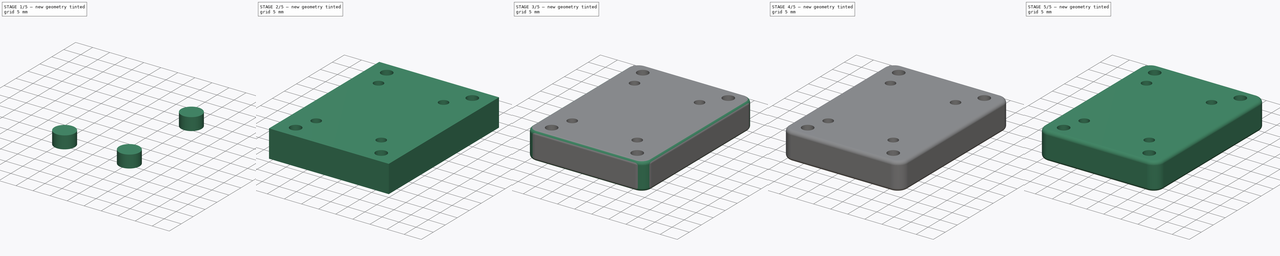
[diagram: build sequence overview — one tinted view per stage of 5, left to right]
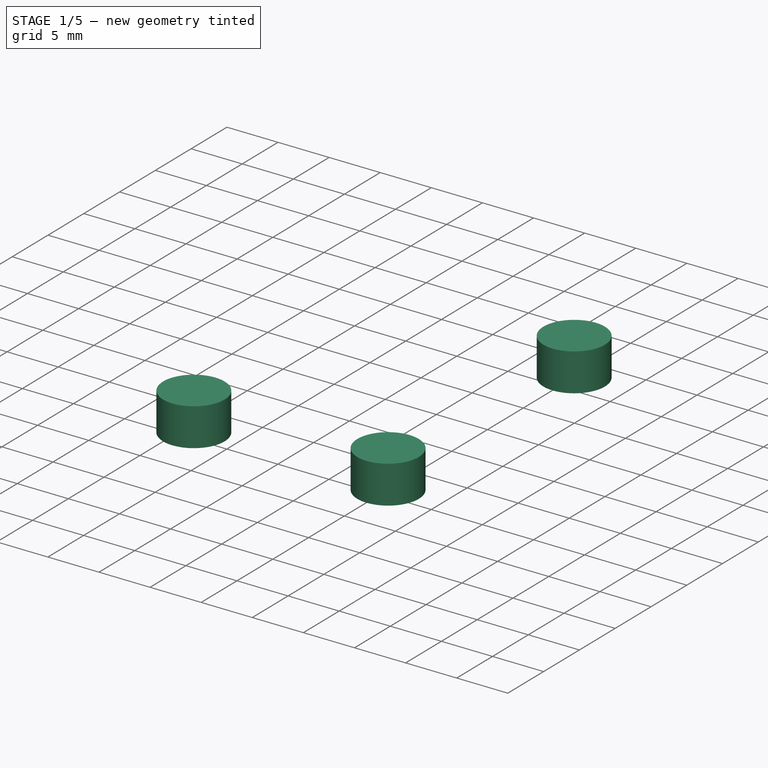
[diagram: stage 1 of 5 — iso view after this stage's code; geometry added in this stage tinted green]
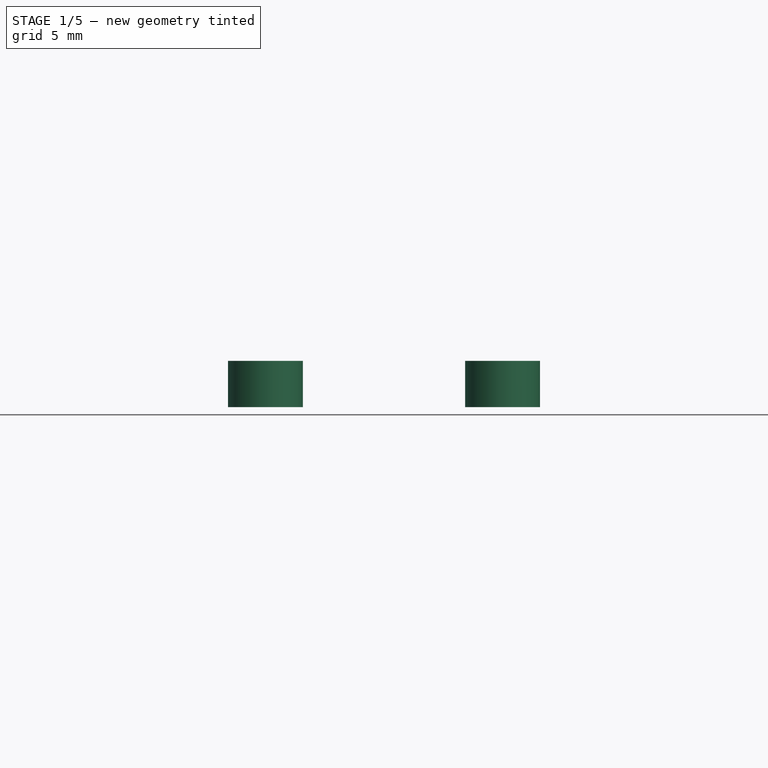
[diagram: stage 1 of 5 — front view after this stage's code; geometry added in this stage tinted green]
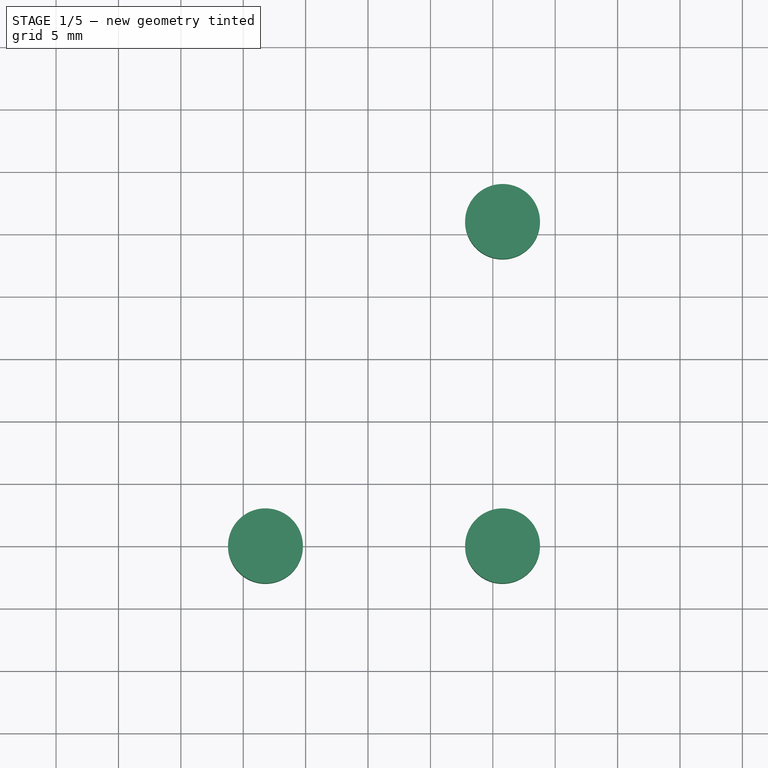
[diagram: stage 1 of 5 — top view after this stage's code; geometry added in this stage tinted green]
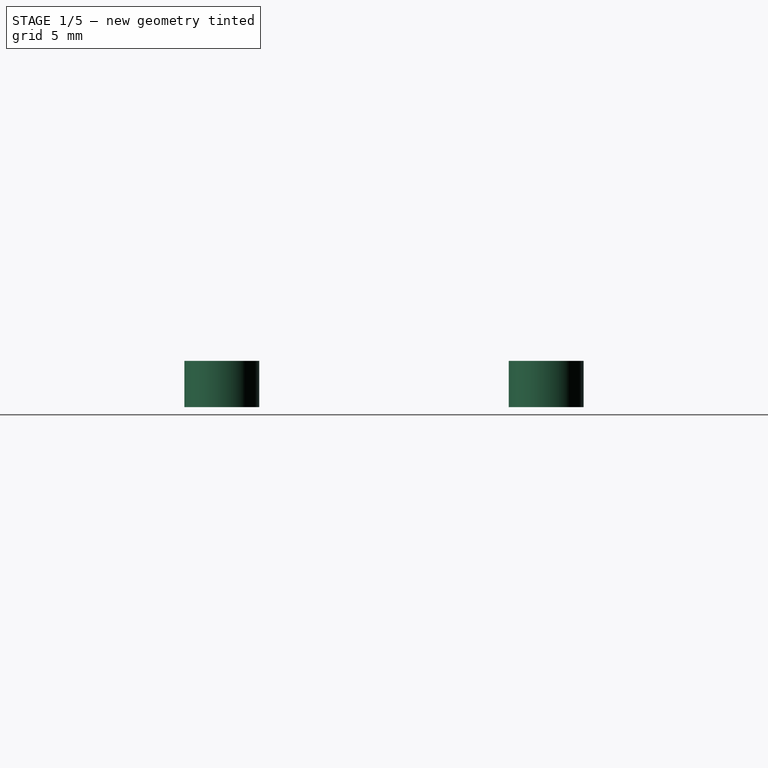
[diagram: stage 1 of 5 — right view after this stage's code; geometry added in this stage tinted green]
FCSTD DOCUMENT  (FreeCAD 1.0R39109 (Git))
Label: ozonePumpHolder
License: All rights reserved
LicenseURL: https://en.wikipedia.org/wiki/All_rights_reserved
objects: Part::Feature×10, Part::Cylinder×8, App::Part×4, Sketcher::SketchObject×2, Part::Extrusion×2, Part::Fillet×2, Part::MultiFuse×2, Part::Cut×2
note: 30 computed .brp shape members not serialized (recipe doc carries the construction recipe); baked Part::Feature solids carry a one-line shape summary decoded from their .brp

FEATURE [Part::Cylinder] Cylinder005
  Angle = 360
  AttacherType = Attacher::AttachEngine3D
  FirstAngle = 0
  Height = 3.7
  Placement = pos=(195.78,-4,-14) rot=(0,0,1;0rad)
  Radius = 3
  SecondAngle = 0
FEATURE [Part::Cylinder] Cylinder006
  Angle = 360
  AttacherType = Attacher::AttachEngine3D
  FirstAngle = 0
  Height = 3.7
  Placement = pos=(195.78,-30,-14) rot=(0,0,1;0rad)
  Radius = 3
  SecondAngle = 0
FEATURE [Part::Cylinder] Cylinder007
  Angle = 360
  AttacherType = Attacher::AttachEngine3D
  FirstAngle = 0
  Height = 3.7
  Placement = pos=(176.78,-30,-14) rot=(0,0,1;0rad)
  Radius = 3
  SecondAngle = 0
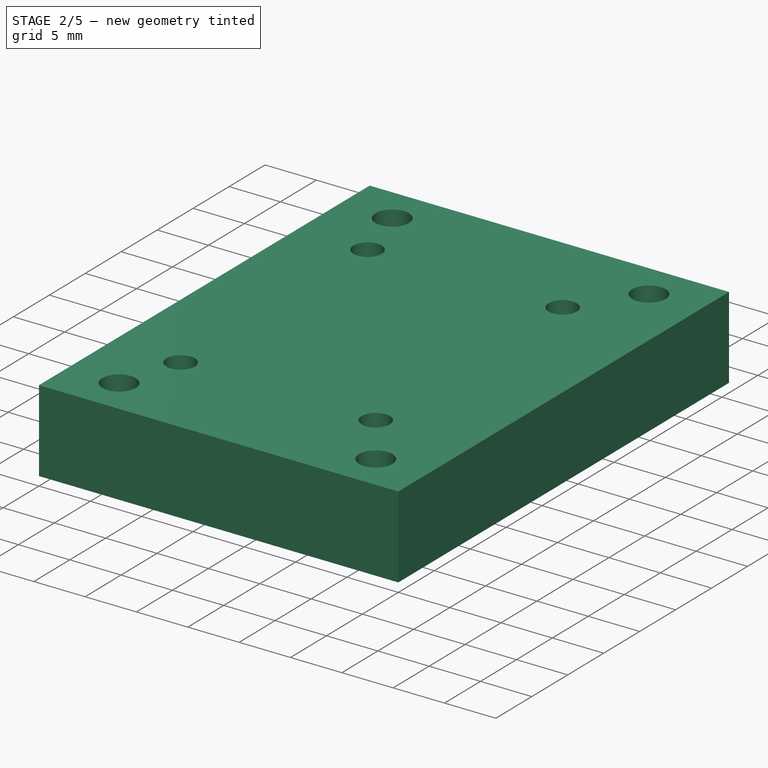
[diagram: stage 2 of 5 — iso view after this stage's code; geometry added in this stage tinted green]
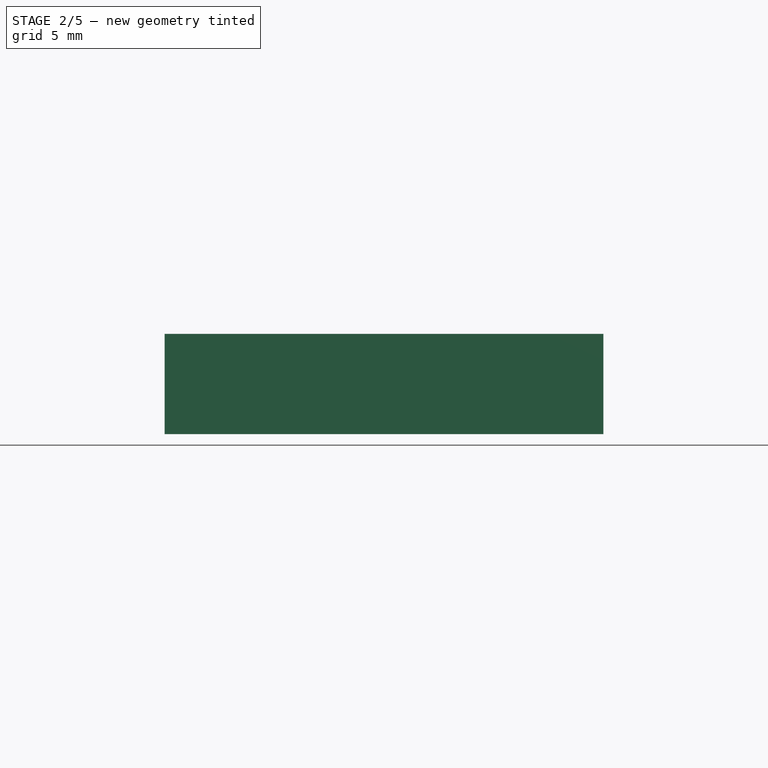
[diagram: stage 2 of 5 — front view after this stage's code; geometry added in this stage tinted green]
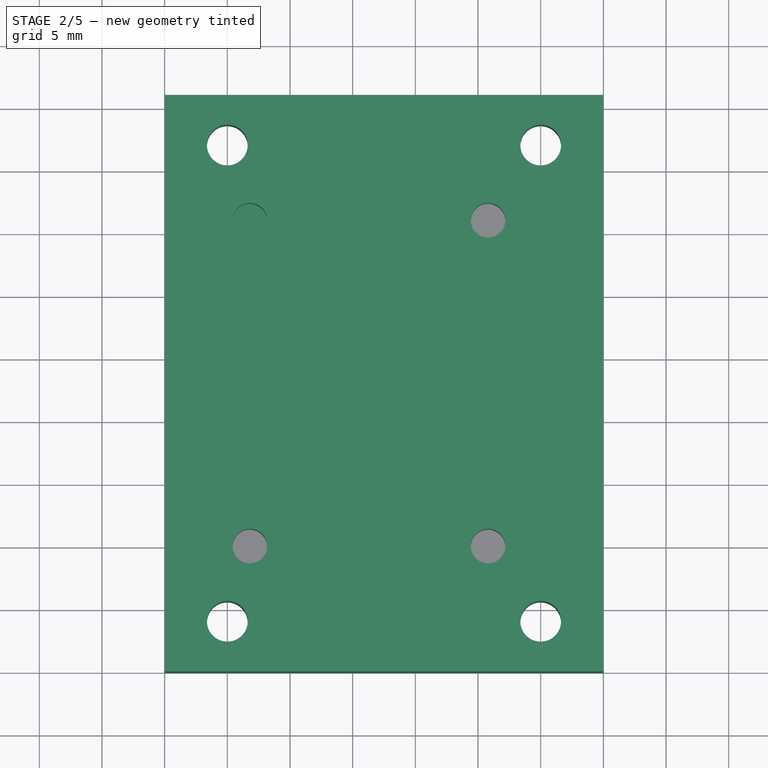
[diagram: stage 2 of 5 — top view after this stage's code; geometry added in this stage tinted green]
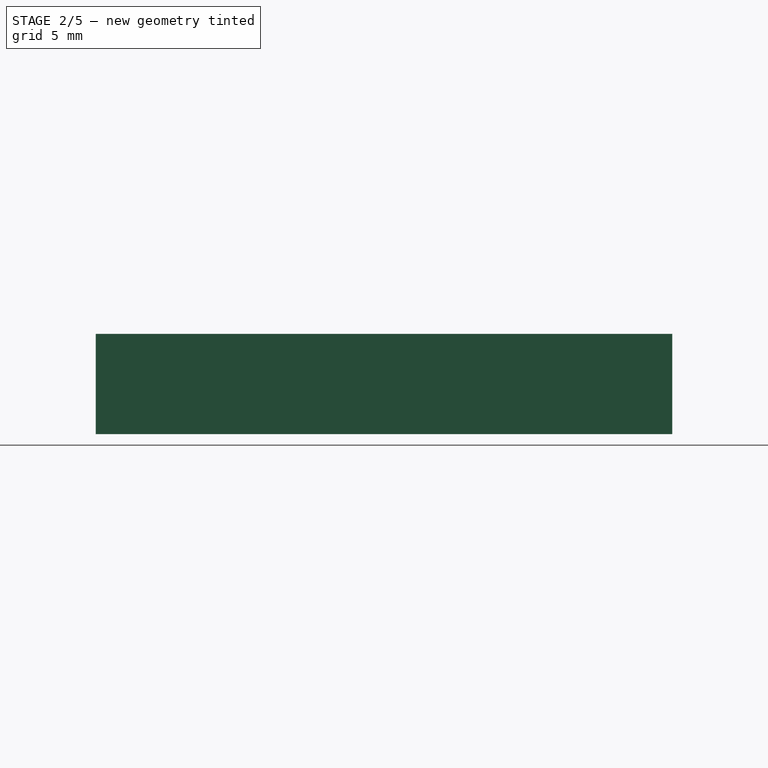
[diagram: stage 2 of 5 — right view after this stage's code; geometry added in this stage tinted green]
FEATURE [App::Part] Part
  Group = -> [_51659_8_05358_PUMPE__SW0001,Sketch,Extrude,Fillet,Cylinder,Cylinder001,Cylinder002,Cylinder003,Fusion,Cut]
  Origin = -> Origin001
FEATURE [Part::Cylinder] Cylinder004
  Angle = 360
  AttacherType = Attacher::AttachEngine3D
  FirstAngle = 0
  Height = 3.7
  Placement = pos=(176.78,-4,-14) rot=(0,0,1;0rad)
  Radius = 3
  SecondAngle = 0
FEATURE [Part::MultiFuse] Fusion001  label="m3_head001"
  Refine = true
  Shapes = -> [Cylinder004,Cylinder005,Cylinder006,Cylinder007]
FEATURE [Part::Feature] Part__Feature009  label="051659-8_05358-PUMPE-_SW0006"
  shape: bbox 32.37 x 50.78 x 84.45 mm, 991 faces (baked)
FEATURE [Part::Feature] Part__Feature010  label="051659-8_05358-PUMPE-_SW0007"
  shape: bbox 4 x 4 x 0.751 mm, 31 faces (baked)
FEATURE [Part::Feature] Part__Feature011  label="051659-8_05358-PUMPE-_SW0008"
  shape: bbox 4 x 4 x 0.751 mm, 31 faces (baked)
FEATURE [Part::Feature] Part__Feature012  label="051659-8_05358-PUMPE-_SW0009"
  shape: bbox 4 x 4 x 0.751 mm, 31 faces (baked)
FEATURE [Part::Feature] Part__Feature013  label="051659-8_05358-PUMPE-_SW0010"
  shape: bbox 4 x 4 x 0.751 mm, 31 faces (baked)
FEATURE [Sketcher::SketchObject] Sketch001
  ArcFitTolerance = 1e-06
  FullyConstrained = true
  MakeInternals = false
  sketch-geometry (12):
    g0: LineSegment StartX=170 StartY=6 StartZ=0 EndX=170 EndY=-40 EndZ=0
    g1: LineSegment StartX=170 StartY=-40 StartZ=0 EndX=205 EndY=-40 EndZ=0
    g2: LineSegment StartX=205 StartY=-40 StartZ=0 EndX=205 EndY=6 EndZ=0
    g3: LineSegment StartX=205 StartY=6 StartZ=0 EndX=170 EndY=6 EndZ=0
    g4: Circle CenterX=195.8 CenterY=-30 CenterZ=0 NormalX=0 NormalY=0 NormalZ=1 AngleXU=0 Radius=1.375
    g5: Circle CenterX=195.8 CenterY=-4 CenterZ=0 NormalX=0 NormalY=0 NormalZ=1 AngleXU=0 Radius=1.375
    g6: Circle CenterX=176.8 CenterY=-30 CenterZ=0 NormalX=0 NormalY=0 NormalZ=1 AngleXU=0 Radius=1.375
    g7: Circle CenterX=176.8 CenterY=-4 CenterZ=0 NormalX=0 NormalY=0 NormalZ=1 AngleXU=0 Radius=1.375
    g8: Circle CenterX=200 CenterY=-36 CenterZ=0 NormalX=0 NormalY=0 NormalZ=1 AngleXU=0 Radius=1.625
    g9: Circle CenterX=200 CenterY=2 CenterZ=0 NormalX=0 NormalY=0 NormalZ=1 AngleXU=0 Radius=1.625
    g10: Circle CenterX=175 CenterY=2 CenterZ=0 NormalX=0 NormalY=0 NormalZ=1 AngleXU=0 Radius=1.625
    g11: Circle CenterX=175 CenterY=-36 CenterZ=0 NormalX=0 NormalY=0 NormalZ=1 AngleXU=0 Radius=1.625
  constraints (36):
    c: Coincident(g0,g1)
    c: Coincident(g1,g2)
    c: Coincident(g2,g3)
    c: Coincident(g3,g0)
    c: Vertical(g0)
    c: Vertical(g2)
    c: Horizontal(g1)
    c: Horizontal(g3)
    c: DistanceX(g3,g3) = 35
    c: Distance(g0) = 46
    c: Distance(g0,g-2) = 170
    c: Distance(g0,g-1) = 40
    c: Equal(g4,g6)
    c: Equal(g4,g7)
    c: Equal(g4,g5)
    c: Diameter(g4) = 2.75
    c: Distance(g4,g2) = 9.2
    c: Distance(g7,g3) = 10
    c: Distance(g6,g1) = 10
    c: Distance(g8,g2) = 5
    c: Equal(g8,g9)
    c: Diameter(g8) = 3.25
    c: Distance(g11,g1) = 4
    c: Distance(g10,g3) = 4
    c: Distance(g10,g0) = 5
    c: Equal(g10,g11)
    c: Diameter(g10) = 3.25
    c: Horizontal(g9,g10)
    c: Horizontal(g8,g11)
    c: Horizontal(g4,g6)
    c: Horizontal(g7,g5)
    c: DistanceX(g0,g7) = 6.8
    c: Vertical(g6,g7)
    c: Vertical(g11,g10)
    c: Vertical(g8,g9)
    c: Vertical(g5,g4)
FEATURE [Part::Extrusion] Extrude001
  Base = -> Sketch001
  Dir = (0,0,1)
  DirMode = 2
  FaceMakerClass = Part::FaceMakerBullseye
  FaceMakerMode = 3
  LengthFwd = 8
  LengthRev = 0
  Placement = pos=(0,0,-14) rot=(0,0,1;0rad)
  Solid = true
  Symmetric = false
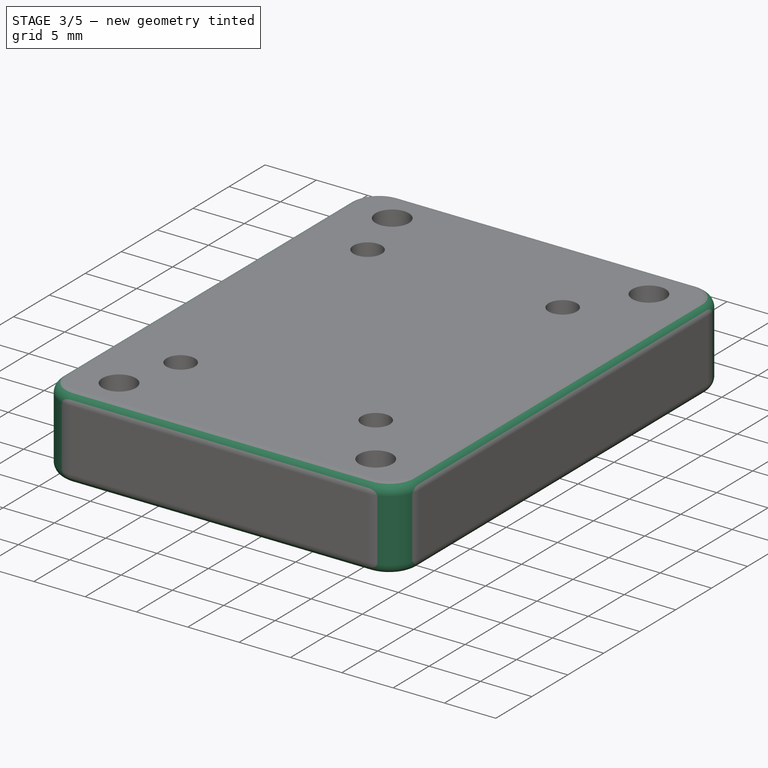
[diagram: stage 3 of 5 — iso view after this stage's code; geometry added in this stage tinted green]
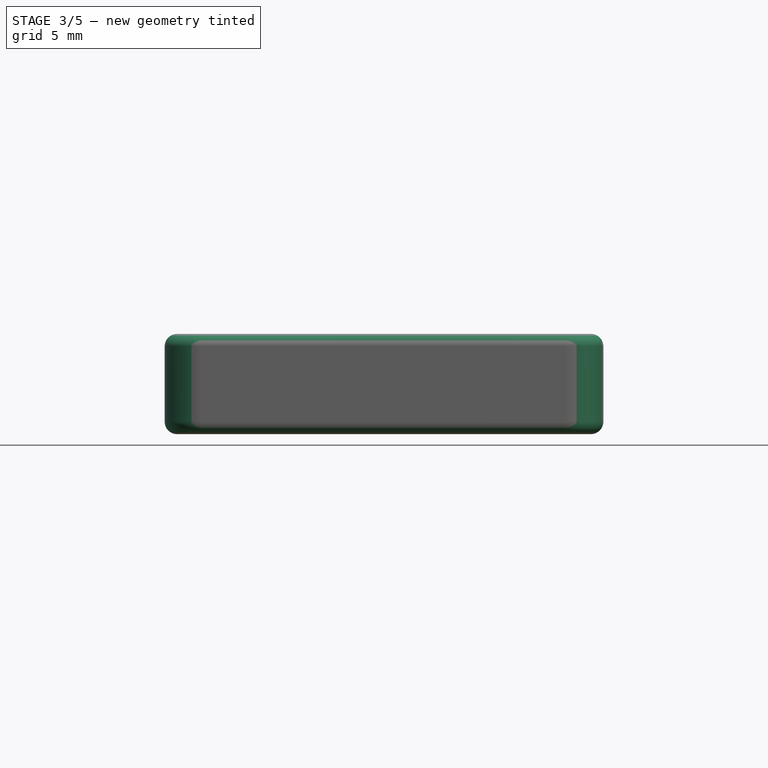
[diagram: stage 3 of 5 — front view after this stage's code; geometry added in this stage tinted green]
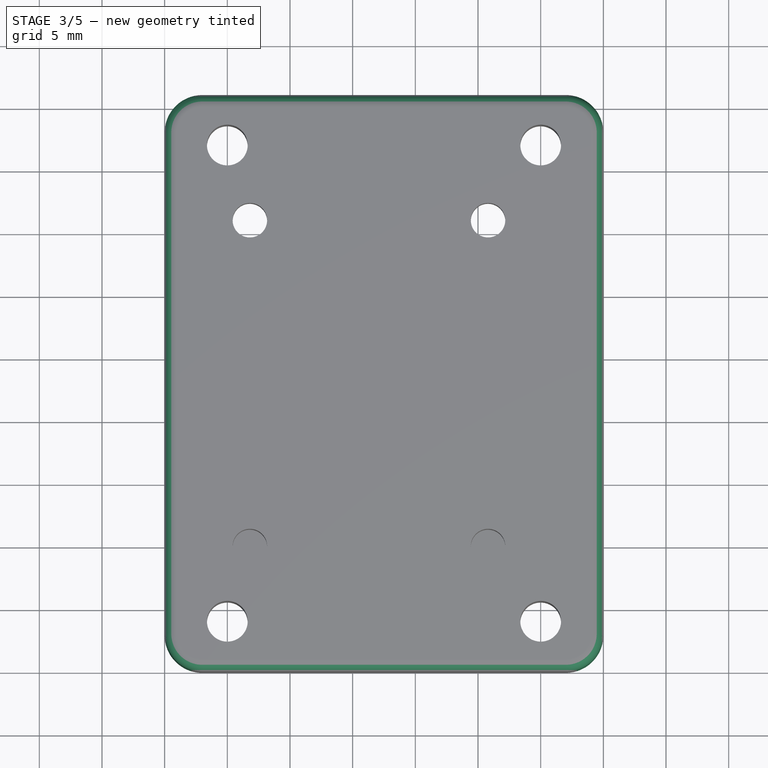
[diagram: stage 3 of 5 — top view after this stage's code; geometry added in this stage tinted green]
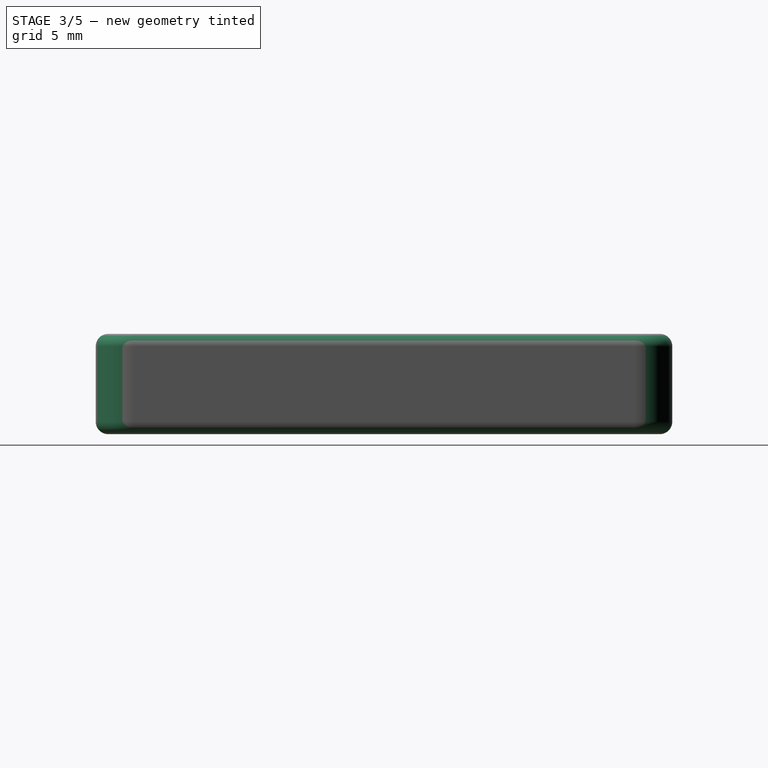
[diagram: stage 3 of 5 — right view after this stage's code; geometry added in this stage tinted green]
FEATURE [Part::Cylinder] Cylinder002
  Angle = 360
  AttacherType = Attacher::AttachEngine3D
  FirstAngle = 0
  Height = 3.7
  Placement = pos=(195.78,-30,-14) rot=(0,0,1;0rad)
  Radius = 3
  SecondAngle = 0
FEATURE [Part::Cylinder] Cylinder003
  Angle = 360
  AttacherType = Attacher::AttachEngine3D
  FirstAngle = 0
  Height = 3.7
  Placement = pos=(176.78,-30,-14) rot=(0,0,1;0rad)
  Radius = 3
  SecondAngle = 0
FEATURE [Part::Fillet] Fillet001  label="Holder001"
  Base = -> Extrude001
  EdgeLinks = -> Extrude001 [?Edge1,?Edge2,Edge3,Edge4,?Edge5,Edge6,Edge7,?Edge8,Edge9,Edge10,Edge11,Edge12]
  Edges = 12 edges: [Edge1 r=3,Edge2 r=3,Edge3 r=1,Edge4 r=1,Edge5 r=3,Edge6 r=1,Edge7 r=1,Edge8 r=3,Edge9 r=1,Edge10 r=1,Edge11 r=1,Edge12 r=1]
FEATURE [Part::Cut] Cut001  label="Holder_M3_cut001"
  Base = -> Fillet001
  Refine = true
  Tool = -> Fusion001
FEATURE [App::Part] _51659_8_05358_PUMPE__SW0002  label="Pump001"
  Group = -> [Part__Feature009,Part__Feature010,Part__Feature011,Part__Feature012,Part__Feature013]
  Origin = -> Origin002
  Placement = pos=(183,-17,11) rot=(0.57735,0.57735,0.57735;2.0944rad)
FEATURE [App::Part] Part001
  Group = -> [_51659_8_05358_PUMPE__SW0002,Sketch001,Extrude001,Fillet001,Cylinder004,Cylinder005,Cylinder006,Cylinder007,Fusion001,Cut001]
  Origin = -> Origin003
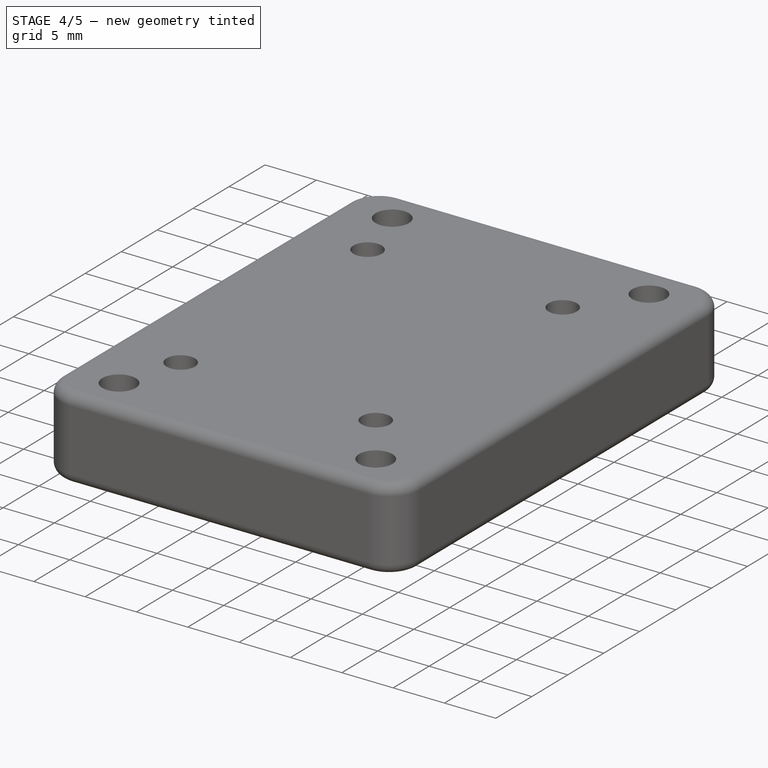
[diagram: stage 4 of 5 — iso view after this stage's code; geometry added in this stage tinted green]
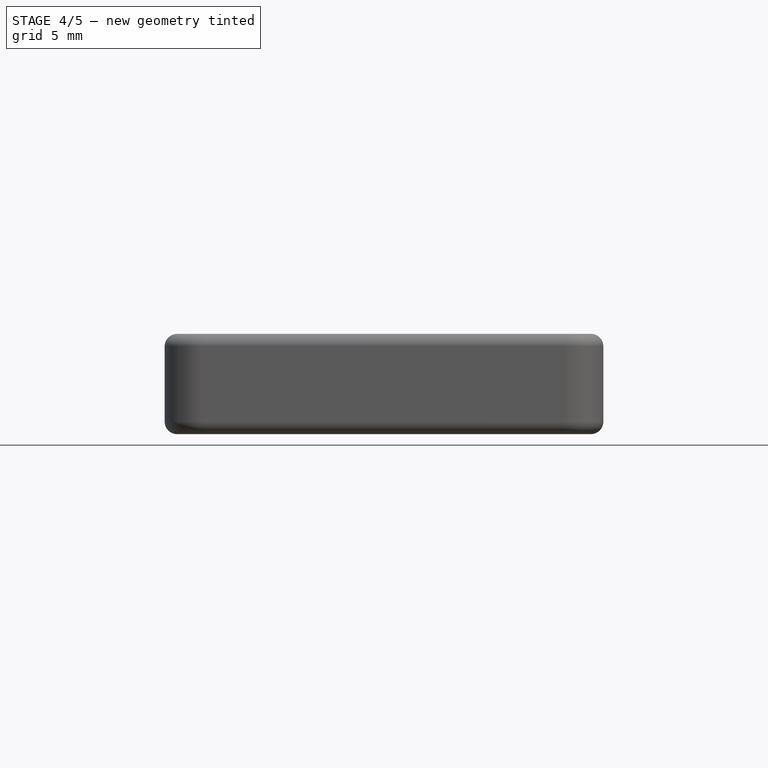
[diagram: stage 4 of 5 — front view after this stage's code; geometry added in this stage tinted green]
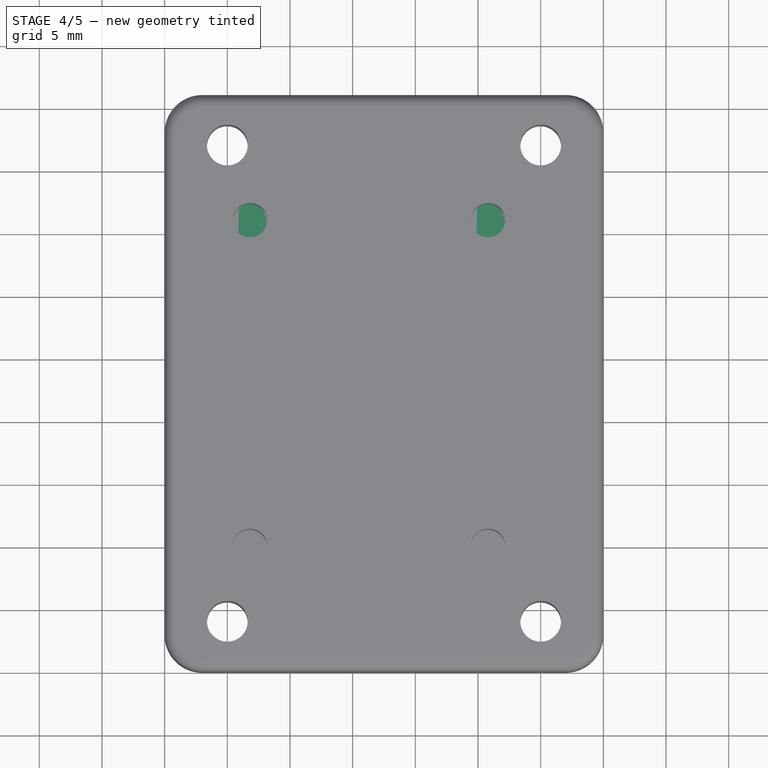
[diagram: stage 4 of 5 — top view after this stage's code; geometry added in this stage tinted green]
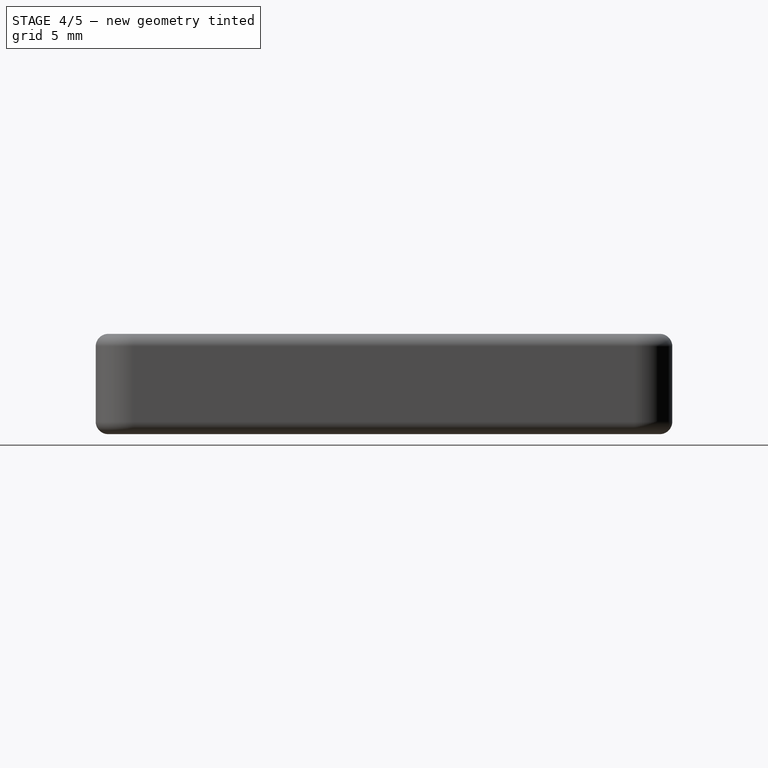
[diagram: stage 4 of 5 — right view after this stage's code; geometry added in this stage tinted green]
FEATURE [Part::Cylinder] Cylinder
  Angle = 360
  AttacherType = Attacher::AttachEngine3D
  FirstAngle = 0
  Height = 3.7
  Placement = pos=(176.78,-4,-14) rot=(0,0,1;0rad)
  Radius = 3
  SecondAngle = 0
FEATURE [Part::Cylinder] Cylinder001
  Angle = 360
  AttacherType = Attacher::AttachEngine3D
  FirstAngle = 0
  Height = 3.7
  Placement = pos=(195.78,-4,-14) rot=(0,0,1;0rad)
  Radius = 3
  SecondAngle = 0
FEATURE [Part::MultiFuse] Fusion  label="m3_head"
  Refine = true
  Shapes = -> [Cylinder,Cylinder001,Cylinder002,Cylinder003]
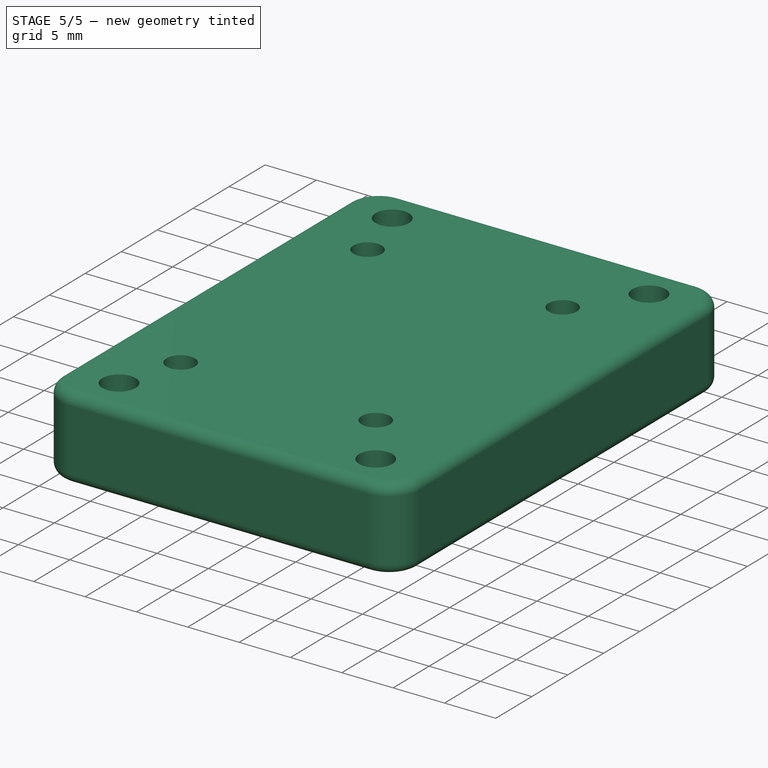
[diagram: stage 5 of 5 — iso view after this stage's code; geometry added in this stage tinted green]
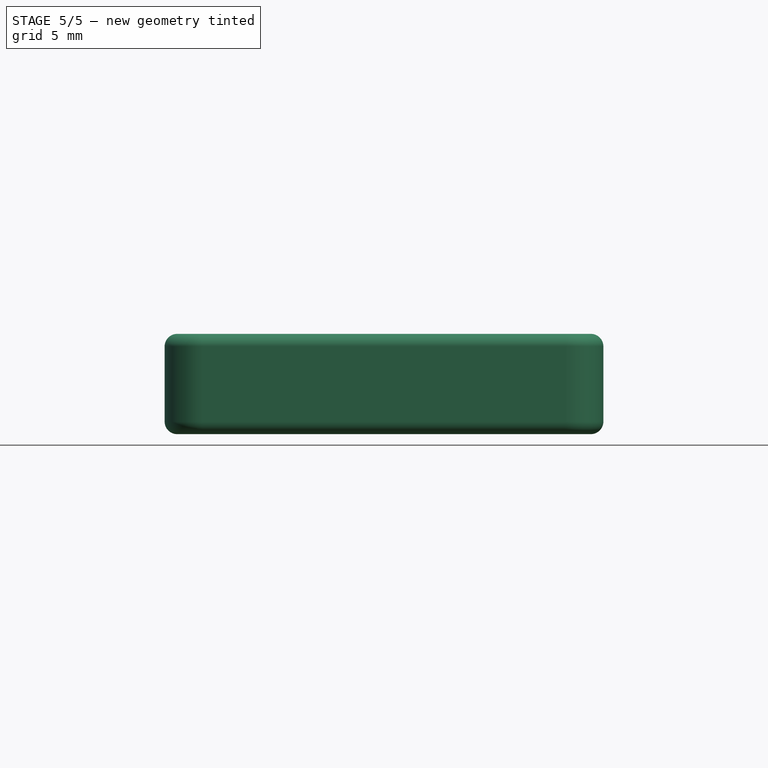
[diagram: stage 5 of 5 — front view after this stage's code; geometry added in this stage tinted green]
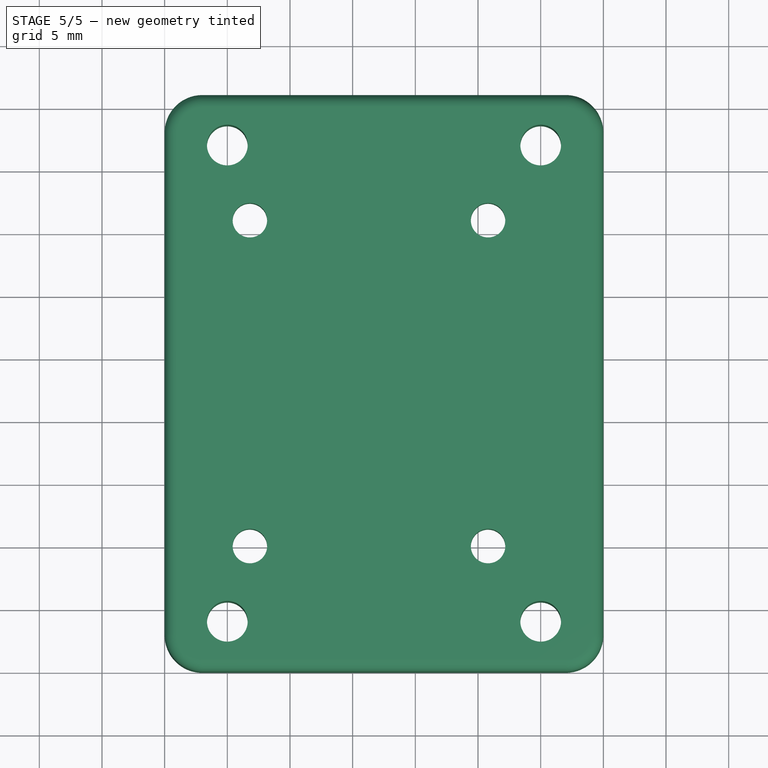
[diagram: stage 5 of 5 — top view after this stage's code; geometry added in this stage tinted green]
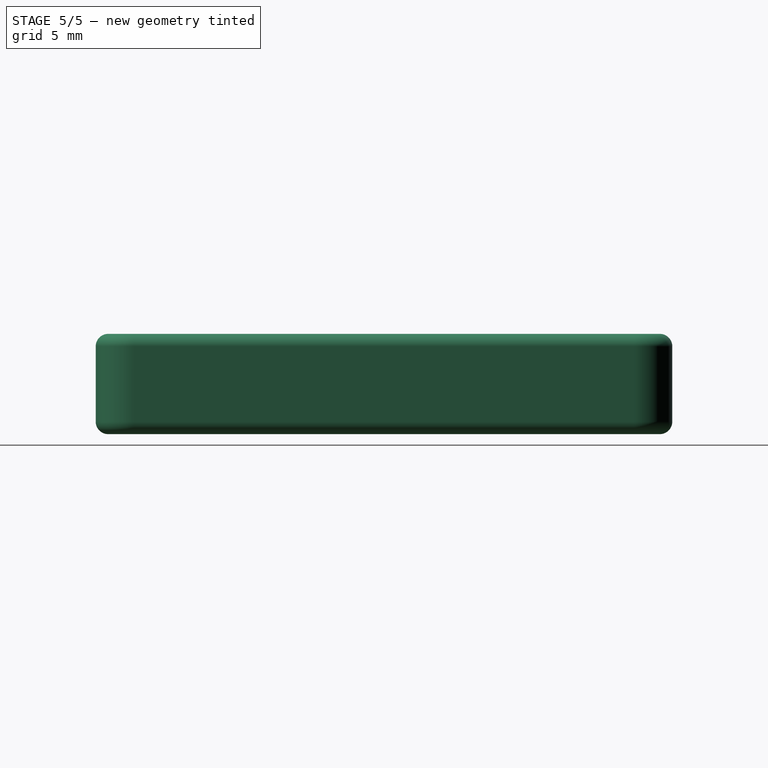
[diagram: stage 5 of 5 — right view after this stage's code; geometry added in this stage tinted green]
FEATURE [Part::Feature] Part__Feature004  label="051659-8_05358-PUMPE-_SW0001"
  shape: bbox 32.37 x 50.78 x 84.45 mm, 991 faces (baked)
FEATURE [Part::Feature] Part__Feature005  label="051659-8_05358-PUMPE-_SW0002"
  shape: bbox 4 x 4 x 0.751 mm, 31 faces (baked)
FEATURE [Part::Feature] Part__Feature006  label="051659-8_05358-PUMPE-_SW0003"
  shape: bbox 4 x 4 x 0.751 mm, 31 faces (baked)
FEATURE [Part::Feature] Part__Feature007  label="051659-8_05358-PUMPE-_SW0004"
  shape: bbox 4 x 4 x 0.751 mm, 31 faces (baked)
FEATURE [Part::Feature] Part__Feature008  label="051659-8_05358-PUMPE-_SW0005"
  shape: bbox 4 x 4 x 0.751 mm, 31 faces (baked)
FEATURE [App::Part] _51659_8_05358_PUMPE__SW0001  label="Pump"
  Group = -> [Part__Feature004,Part__Feature005,Part__Feature006,Part__Feature007,Part__Feature008]
  Origin = -> Origin
  Placement = pos=(183,-17,11) rot=(0.57735,0.57735,0.57735;2.0944rad)
FEATURE [Sketcher::SketchObject] Sketch
  ArcFitTolerance = 1e-06
  FullyConstrained = true
  MakeInternals = false
  sketch-geometry (12):
    g0: LineSegment StartX=170 StartY=6 StartZ=0 EndX=170 EndY=-40 EndZ=0
    g1: LineSegment StartX=170 StartY=-40 StartZ=0 EndX=205 EndY=-40 EndZ=0
    g2: LineSegment StartX=205 StartY=-40 StartZ=0 EndX=205 EndY=6 EndZ=0
    g3: LineSegment StartX=205 StartY=6 StartZ=0 EndX=170 EndY=6 EndZ=0
    g4: Circle CenterX=195.8 CenterY=-30 CenterZ=0 NormalX=0 NormalY=0 NormalZ=1 AngleXU=0 Radius=1.375
    g5: Circle CenterX=195.8 CenterY=-4 CenterZ=0 NormalX=0 NormalY=0 NormalZ=1 AngleXU=0 Radius=1.375
    g6: Circle CenterX=176.8 CenterY=-30 CenterZ=0 NormalX=0 NormalY=0 NormalZ=1 AngleXU=0 Radius=1.375
    g7: Circle CenterX=176.8 CenterY=-4 CenterZ=0 NormalX=0 NormalY=0 NormalZ=1 AngleXU=0 Radius=1.375
    g8: Circle CenterX=200 CenterY=-36 CenterZ=0 NormalX=0 NormalY=0 NormalZ=1 AngleXU=0 Radius=1.625
    g9: Circle CenterX=200 CenterY=2 CenterZ=0 NormalX=0 NormalY=0 NormalZ=1 AngleXU=0 Radius=1.625
    g10: Circle CenterX=175 CenterY=2 CenterZ=0 NormalX=0 NormalY=0 NormalZ=1 AngleXU=0 Radius=1.625
    g11: Circle CenterX=175 CenterY=-36 CenterZ=0 NormalX=0 NormalY=0 NormalZ=1 AngleXU=0 Radius=1.625
  constraints (36):
    c: Coincident(g0,g1)
    c: Coincident(g1,g2)
    c: Coincident(g2,g3)
    c: Coincident(g3,g0)
    c: Vertical(g0)
    c: Vertical(g2)
    c: Horizontal(g1)
    c: Horizontal(g3)
    c: DistanceX(g3,g3) = 35
    c: Distance(g0) = 46
    c: Distance(g0,g-2) = 170
    c: Distance(g0,g-1) = 40
    c: Equal(g4,g6)
    c: Equal(g4,g7)
    c: Equal(g4,g5)
    c: Diameter(g4) = 2.75
    c: Distance(g4,g2) = 9.2
    c: Distance(g7,g3) = 10
    c: Distance(g6,g1) = 10
    c: Distance(g8,g2) = 5
    c: Equal(g8,g9)
    c: Diameter(g8) = 3.25
    c: Distance(g11,g1) = 4
    c: Distance(g10,g3) = 4
    c: Distance(g10,g0) = 5
    c: Equal(g10,g11)
    c: Diameter(g10) = 3.25
    c: Horizontal(g9,g10)
    c: Horizontal(g8,g11)
    c: Horizontal(g4,g6)
    c: Horizontal(g7,g5)
    c: DistanceX(g0,g7) = 6.8
    c: Vertical(g6,g7)
    c: Vertical(g11,g10)
    c: Vertical(g8,g9)
    c: Vertical(g5,g4)
FEATURE [Part::Extrusion] Extrude
  Base = -> Sketch
  Dir = (0,0,1)
  DirMode = 2
  FaceMakerClass = Part::FaceMakerBullseye
  FaceMakerMode = 3
  LengthFwd = 8
  LengthRev = 0
  Placement = pos=(0,0,-14) rot=(0,0,1;0rad)
  Solid = true
  Symmetric = false
FEATURE [Part::Fillet] Fillet  label="Holder"
  Base = -> Extrude
  EdgeLinks = -> Extrude [?Edge1,?Edge2,Edge3,Edge4,?Edge5,Edge6,Edge7,?Edge8,Edge9,Edge10,Edge11,Edge12]
  Edges = 12 edges: [Edge1 r=3,Edge2 r=3,Edge3 r=1,Edge4 r=1,Edge5 r=3,Edge6 r=1,Edge7 r=1,Edge8 r=3,Edge9 r=1,Edge10 r=1,Edge11 r=1,Edge12 r=1]
FEATURE [Part::Cut] Cut  label="Holder_M3_cut"
  Base = -> Fillet
  Refine = true
  Tool = -> Fusion
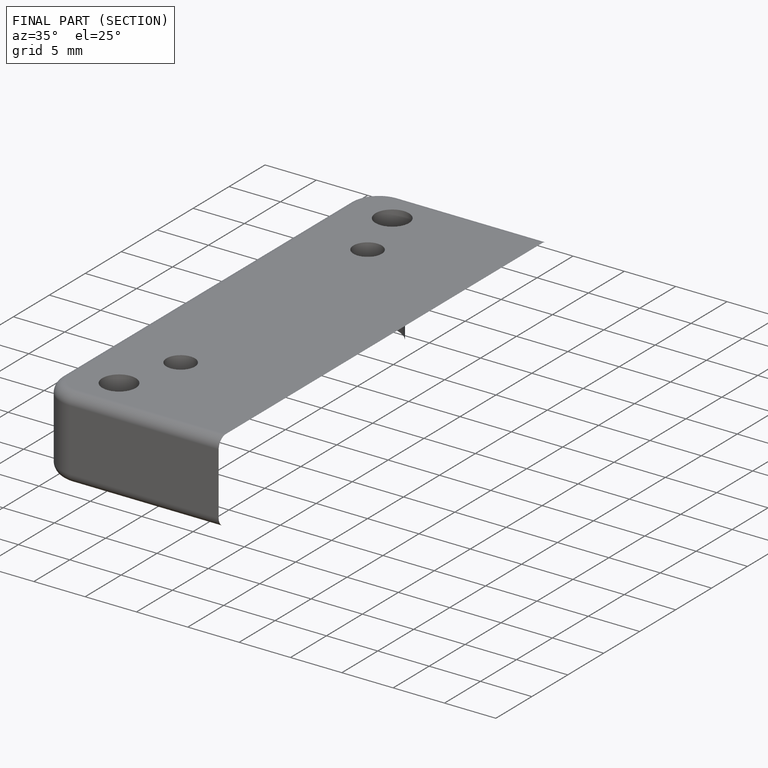
[diagram: finished part — half-section view (interior)]
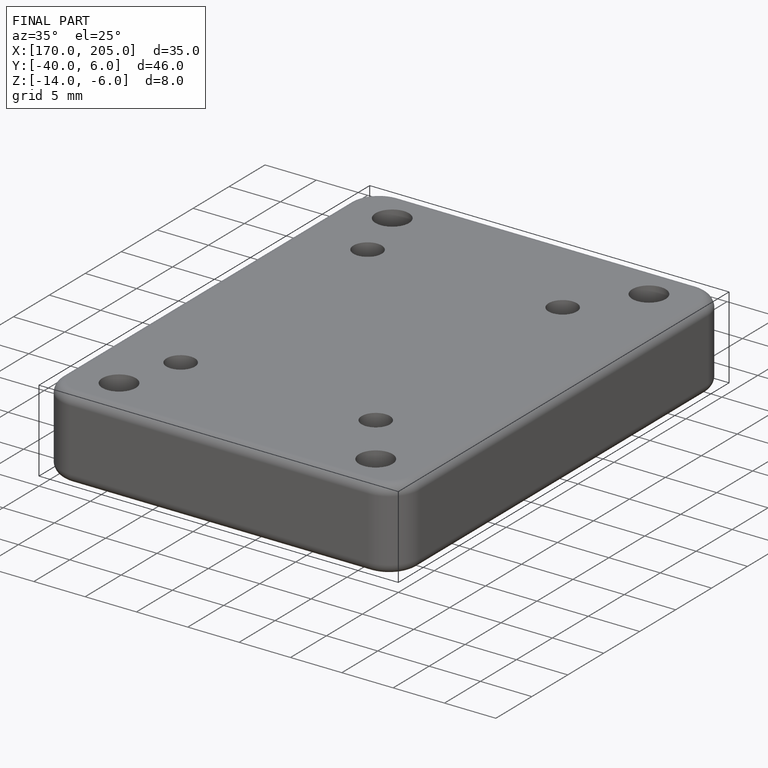
[diagram: finished part — iso view with bounding-box wireframe]
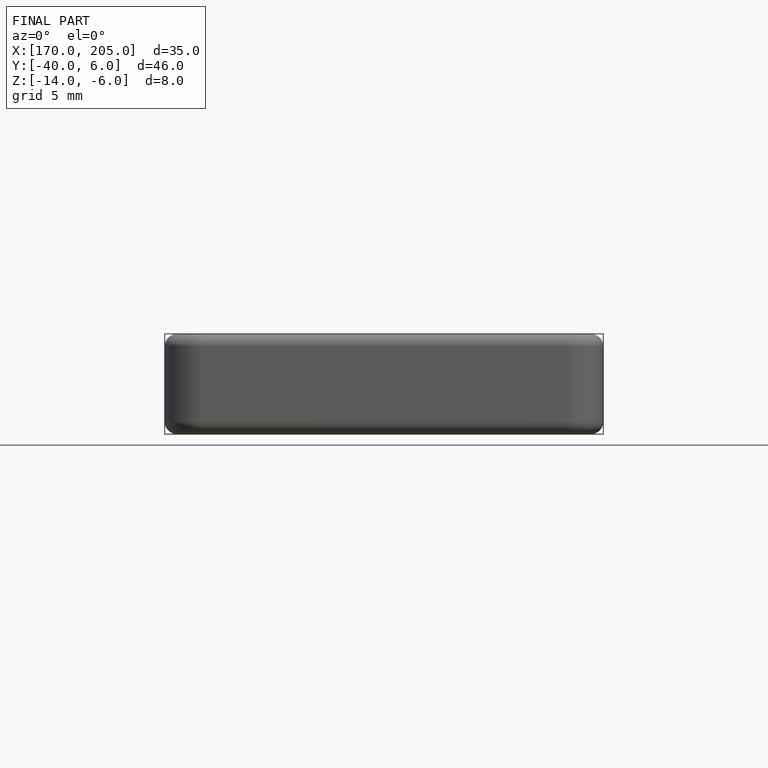
[diagram: finished part — front view with bounding-box wireframe]
